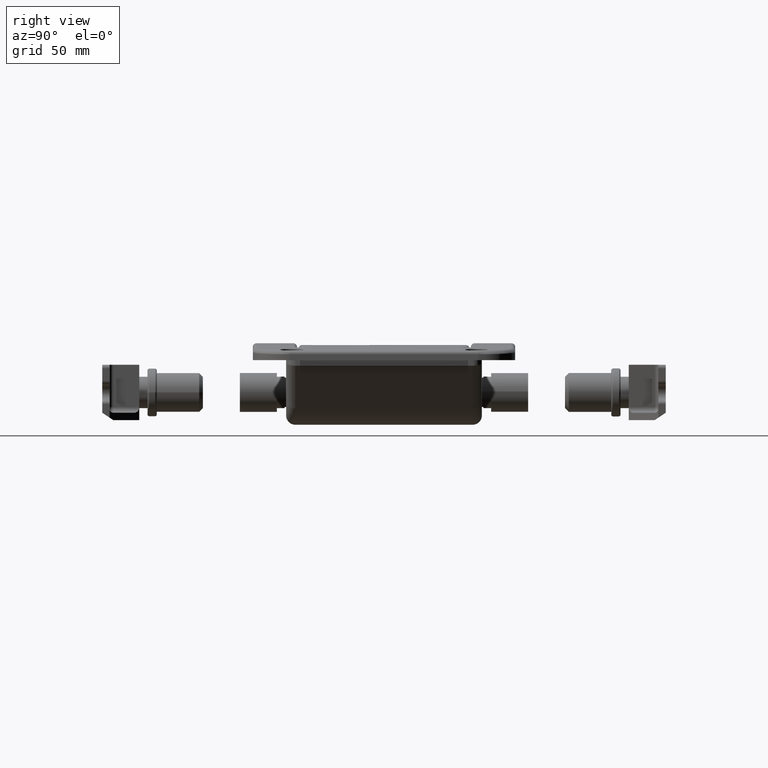
[diagram: clean part render]
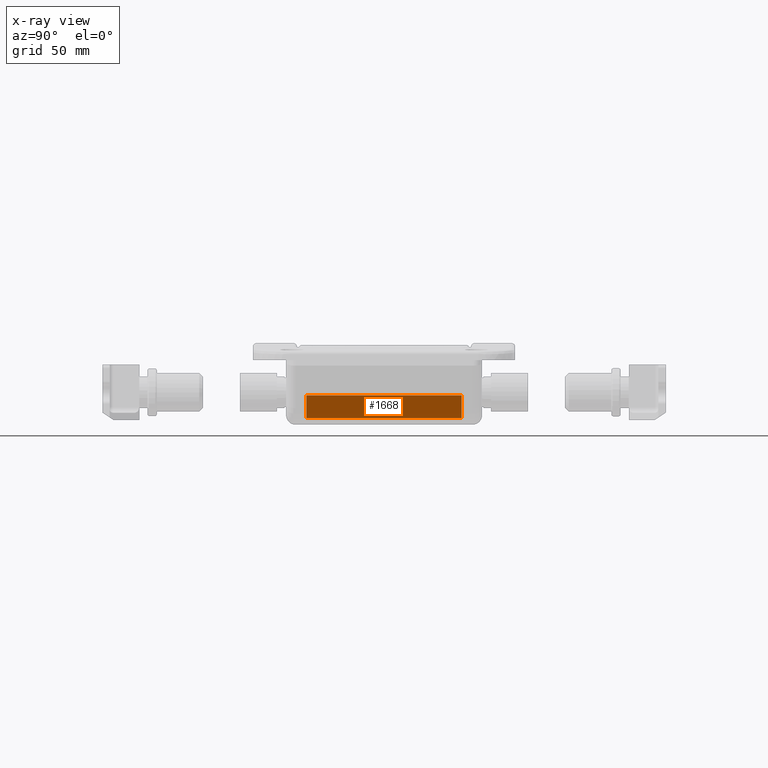
[diagram: x-ray — body ghosted, one internal face saturated and labeled with its STEP entity id]
A machine part, right view, then the same camera in x-ray: the body is ghosted and one INTERNAL B-rep face — a face not visible from any outside direction — is saturated and labeled: STEP entity #1668.
In plain terms, the highlighted planar face has unit normal (-0.7071, 0, 0.7071).
Its self-contained STEP definition (entity closure, byte-faithful):
#52 = EDGE_LOOP ( 'NONE', ( #2360, #2361, #2362, #2363 ) ) ;
#380 = VERTEX_POINT ( 'NONE', #8130 ) ;
#381 = VERTEX_POINT ( 'NONE', #8131 ) ;
#415 = VERTEX_POINT ( 'NONE', #8165 ) ;
#444 = VERTEX_POINT ( 'NONE', #8194 ) ;
#1434 = EDGE_CURVE ( 'NONE', #381, #380, #7627, .T. ) ;
#1520 = EDGE_CURVE ( 'NONE', #444, #415, #7732, .T. ) ;
#1668 = ADVANCED_FACE ( 'NONE', ( #11036 ), #11623, .F. ) ;
#1795 = EDGE_CURVE ( 'NONE', #381, #444, #11244, .T. ) ;
#1796 = EDGE_CURVE ( 'NONE', #380, #415, #11247, .T. ) ;
#2360 = ORIENTED_EDGE ( 'NONE', *, *, #1795, .F. ) ;
#2361 = ORIENTED_EDGE ( 'NONE', *, *, #1434, .T. ) ;
#2362 = ORIENTED_EDGE ( 'NONE', *, *, #1796, .T. ) ;
#2363 = ORIENTED_EDGE ( 'NONE', *, *, #1520, .F. ) ;
#7627 = LINE ( 'NONE', #9417, #7629 ) ;
#7629 = VECTOR ( 'NONE', #9418, 1000.000000000000000 ) ;
#7732 = LINE ( 'NONE', #9762, #7733 ) ;
#7733 = VECTOR ( 'NONE', #9763, 1000.000000000000000 ) ;
#8130 = CARTESIAN_POINT ( 'NONE',  ( 1.654450236093999400, 42.00000000000000000, -13.90189895000997600 ) ) ;
#8131 = CARTESIAN_POINT ( 'NONE',  ( 1.654450236094001200, -42.00000000000000000, -13.90189895000997400 ) ) ;
#8165 = CARTESIAN_POINT ( 'NONE',  ( 13.90189895000996000, 42.00000000000000000, -1.654450236094157300 ) ) ;
#8194 = CARTESIAN_POINT ( 'NONE',  ( 13.90189895000996000, -41.99999999999999300, -1.654450236094157300 ) ) ;
#9417 = CARTESIAN_POINT ( 'NONE',  ( 1.654450236094001200, -42.00000000000000000, -13.90189895000997400 ) ) ;
#9418 = DIRECTION ( 'NONE',  ( -0.0000000000000000000, 1.000000000000000000, -0.0000000000000000000 ) ) ;
#9762 = CARTESIAN_POINT ( 'NONE',  ( 13.90189895000995600, 46.00000000000000000, -1.654450236094159100 ) ) ;
#9763 = DIRECTION ( 'NONE',  ( 0.0000000000000000000, 1.000000000000000000, 0.0000000000000000000 ) ) ;
#11036 = FACE_OUTER_BOUND ( 'NONE', #52, .T. ) ;
#11244 = LINE ( 'NONE', #12125, #11246 ) ;
#11246 = VECTOR ( 'NONE', #12126, 1000.000000000000000 ) ;
#11247 = LINE ( 'NONE', #12127, #11248 ) ;
#11248 = VECTOR ( 'NONE', #12128, 1000.000000000000000 ) ;
#11623 = PLANE ( 'NONE',  #12871 ) ;
#11624 = CARTESIAN_POINT ( 'NONE',  ( 1.654450236094001200, -42.00000000000000000, -13.90189895000997400 ) ) ;
#11625 = DIRECTION ( 'NONE',  ( -0.7071067811865435800, 0.0000000000000000000, 0.7071067811865515700 ) ) ;
#11626 = DIRECTION ( 'NONE',  ( 0.7071067811865515700, 0.0000000000000000000, 0.7071067811865435800 ) ) ;
#12125 = CARTESIAN_POINT ( 'NONE',  ( 1.654450236094001200, -42.00000000000000000, -13.90189895000997400 ) ) ;
#12126 = DIRECTION ( 'NONE',  ( 0.7071067811865515700, 0.0000000000000000000, 0.7071067811865435800 ) ) ;
#12127 = CARTESIAN_POINT ( 'NONE',  ( 1.654450236094001200, 42.00000000000000000, -13.90189895000997400 ) ) ;
#12128 = DIRECTION ( 'NONE',  ( 0.7071067811865515700, 0.0000000000000000000, 0.7071067811865435800 ) ) ;
#12871 = AXIS2_PLACEMENT_3D ( 'NONE', #11624, #11625, #11626 ) ;